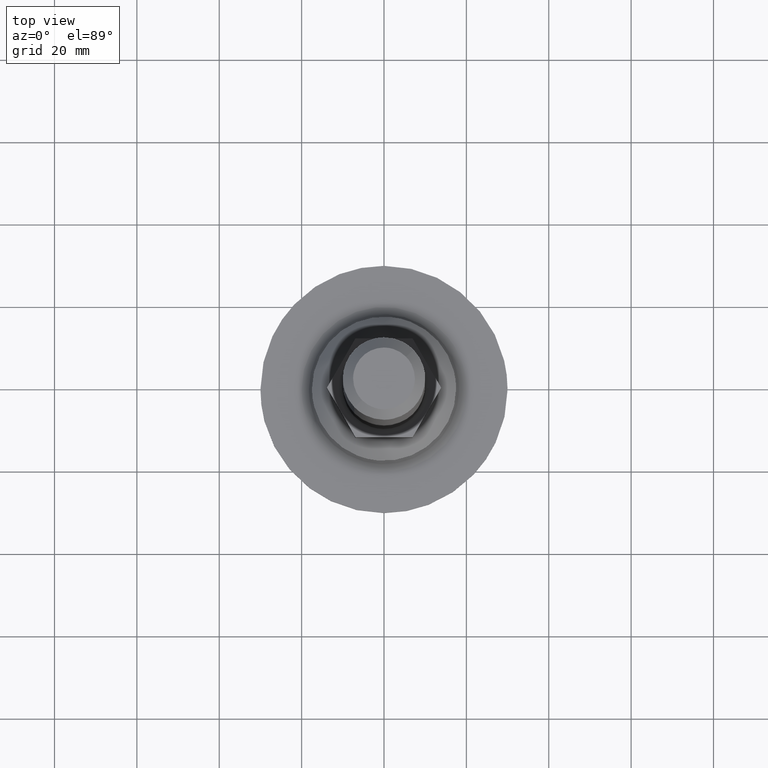
[diagram: clean part render]
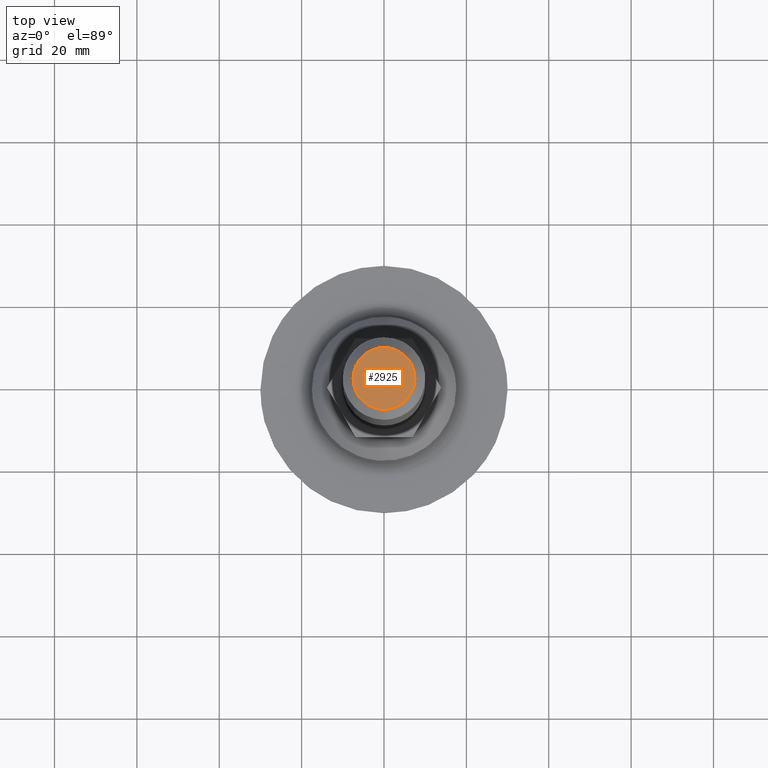
[diagram: same view with one face highlighted and labeled with its STEP entity id]
A machine part, top view. The second image highlights one B-rep face of the part: STEP entity #2925.
In plain terms, the highlighted face is a freeform B-spline surface patch.
Its self-contained STEP definition (entity closure, byte-faithful):
#2839=CARTESIAN_POINT('',(-8.249249970927089,8.249249970926865,156.0));
#2840=CARTESIAN_POINT('',(8.249250373258443,8.249249970926865,156.0));
#2841=CARTESIAN_POINT('',(-8.249249970927089,-8.249250373258215,156.0));
#2842=CARTESIAN_POINT('',(8.249250373258443,-8.249250373258215,156.0));
#2843=B_SPLINE_SURFACE_WITH_KNOTS('',1,1,((#2839,#2841),(#2840,#2842)),.UNSPECIFIED.,.F.,.F.,.U.,(2,2),(2,2),(0.0,16.498500344185530),(0.0,16.498500344185079),.UNSPECIFIED.);
#2844=CARTESIAN_POINT('',(-7.500000000000000,0.0,156.0));
#2845=VERTEX_POINT('',#2844);
#2846=CARTESIAN_POINT('',(-5.349377900920906,-5.256819022606571,156.000000218593410));
#2847=VERTEX_POINT('',#2846);
#2848=CARTESIAN_POINT('',(-7.500000000000000,0.0,156.0));
#2849=CARTESIAN_POINT('',(-7.500106200073280,-0.546106464111549,156.000000022708600));
#2850=CARTESIAN_POINT('',(-7.390142226541801,-1.547229718290013,156.000000064338710));
#2851=CARTESIAN_POINT('',(-6.963391268277682,-2.882041885373877,156.000000119842810));
#2852=CARTESIAN_POINT('',(-6.317720570643135,-4.124185055931876,156.000000171497390));
#2853=CARTESIAN_POINT('',(-5.732219579950963,-4.867380685235695,156.000000202396310));
#2854=CARTESIAN_POINT('',(-5.349377900920906,-5.256819022606571,156.000000218593410));
#2855=B_SPLINE_CURVE_WITH_KNOTS('',3,(#2848,#2849,#2850,#2851,#2852,#2853,#2854),.UNSPECIFIED.,.F.,.U.,(4,1,1,1,4),(0.000000043828694,1.638303553395550,3.003526415067799,4.186768356268257,5.825071865800560),.UNSPECIFIED.);
#2856=EDGE_CURVE('',#2845,#2847,#2855,.T.);
#2857=ORIENTED_EDGE('',*,*,#2856,.T.);
#2858=CARTESIAN_POINT('',(0.000001749013158,-7.499999999999796,156.0));
#2859=VERTEX_POINT('',#2858);
#2860=CARTESIAN_POINT('',(-5.349377900920906,-5.256819022606571,156.000000218593410));
#2861=CARTESIAN_POINT('',(-4.936360041716210,-5.677312572994516,156.000000201716600));
#2862=CARTESIAN_POINT('',(-4.180985432884779,-6.283169667683238,156.000000170848300));
#2863=CARTESIAN_POINT('',(-2.914373085367433,-6.948899307031571,156.000000119091510));
#2864=CARTESIAN_POINT('',(-1.581998411104013,-7.385144111041656,156.000000064646000));
#2865=CARTESIAN_POINT('',(-0.558377028348503,-7.500110485579886,156.000000022816690));
#2866=CARTESIAN_POINT('',(0.000001749013158,-7.499999999999796,156.0));
#2867=B_SPLINE_CURVE_WITH_KNOTS('',3,(#2860,#2861,#2862,#2863,#2864,#2865,#2866),.UNSPECIFIED.,.F.,.U.,(4,1,1,1,4),(0.000000048970378,1.768186686149679,2.884953871063571,4.280855391529840,5.955975767049213),.UNSPECIFIED.);
#2868=EDGE_CURVE('',#2847,#2859,#2867,.T.);
#2869=ORIENTED_EDGE('',*,*,#2868,.T.);
#2870=CARTESIAN_POINT('',(7.500000000000000,0.0,156.0));
#2871=VERTEX_POINT('',#2870);
#2872=CARTESIAN_POINT('',(0.000001749013158,-7.499999999999796,156.0));
#2873=CARTESIAN_POINT('',(0.674981685653475,-7.500240112328339,156.000000000000710));
#2874=CARTESIAN_POINT('',(1.687253191681694,-7.362344405829639,155.999999999999490));
#2875=CARTESIAN_POINT('',(3.138050012602648,-6.853275494631770,156.000000000000200));
#2876=CARTESIAN_POINT('',(4.403898013216294,-6.146498603649919,156.000000000000310));
#2877=CARTESIAN_POINT('',(5.508538513411512,-5.157563005795889,155.999999999999490));
#2878=CARTESIAN_POINT('',(6.346680767271556,-4.055797334140673,155.999999999999890));
#2879=CARTESIAN_POINT('',(7.000025773385493,-2.833756435497882,156.000000000000200));
#2880=CARTESIAN_POINT('',(7.412898018557483,-1.441951724538158,156.0));
#2881=CARTESIAN_POINT('',(7.500012303349404,-0.429500119654456,156.000000000000110));
#2882=CARTESIAN_POINT('',(7.500000000000000,0.0,156.0));
#2883=B_SPLINE_CURVE_WITH_KNOTS('',3,(#2872,#2873,#2874,#2875,#2876,#2877,#2878,#2879,#2880,#2881,#2882),.UNSPECIFIED.,.F.,.U.,(4,1,1,1,1,1,1,1,4),(0.000000177321665,2.024847265101659,3.037302921258737,4.602002465822457,6.350671561383708,7.455169592950589,8.743743033424885,10.492523747331029,11.781045385798789),.UNSPECIFIED.);
#2884=EDGE_CURVE('',#2859,#2871,#2883,.T.);
#2885=ORIENTED_EDGE('',*,*,#2884,.T.);
#2886=CARTESIAN_POINT('',(5.349377900920924,5.256819022606589,156.000000218593410));
#2887=VERTEX_POINT('',#2886);
#2888=CARTESIAN_POINT('',(7.500000000000000,0.0,156.0));
#2889=CARTESIAN_POINT('',(7.500088340864873,0.546101808763915,156.000000022708210));
#2890=CARTESIAN_POINT('',(7.390174948804482,1.547241537411428,156.000000064339390));
#2891=CARTESIAN_POINT('',(6.963375967437222,2.882034633912279,156.000000119842410));
#2892=CARTESIAN_POINT('',(6.317723818043145,4.124189502988250,156.000000171497190));
#2893=CARTESIAN_POINT('',(5.732220249316512,4.867377968787142,156.000000202398700));
#2894=CARTESIAN_POINT('',(5.349377900920924,5.256819022606589,156.000000218593410));
#2895=B_SPLINE_CURVE_WITH_KNOTS('',3,(#2888,#2889,#2890,#2891,#2892,#2893,#2894),.UNSPECIFIED.,.F.,.U.,(4,1,1,1,4),(0.000000043828417,1.638303553395381,3.003526415067709,4.186768356268222,5.825071865800570),.UNSPECIFIED.);
#2896=EDGE_CURVE('',#2871,#2887,#2895,.T.);
#2897=ORIENTED_EDGE('',*,*,#2896,.T.);
#2898=CARTESIAN_POINT('',(-0.000001749013101,7.499999999999797,156.0));
#2899=VERTEX_POINT('',#2898);
#2900=CARTESIAN_POINT('',(5.349377900920924,5.256819022606589,156.000000218593410));
#2901=CARTESIAN_POINT('',(4.827756130537935,5.788083442424723,156.000000197278210));
#2902=CARTESIAN_POINT('',(3.699770046819489,6.636465755660144,156.000000151184710));
#2903=CARTESIAN_POINT('',(1.830193364697843,7.353103608303607,156.000000074788690));
#2904=CARTESIAN_POINT('',(0.589392223691038,7.500102762901888,156.000000024084190));
#2905=CARTESIAN_POINT('',(-0.000001749013101,7.499999999999797,156.0));
#2906=B_SPLINE_CURVE_WITH_KNOTS('',3,(#2900,#2901,#2902,#2903,#2904,#2905),.UNSPECIFIED.,.F.,.U.,(4,1,1,4),(0.000000048971017,2.233503535995036,4.187789129821025,5.955975767049162),.UNSPECIFIED.);
#2907=EDGE_CURVE('',#2887,#2899,#2906,.T.);
#2908=ORIENTED_EDGE('',*,*,#2907,.T.);
#2909=CARTESIAN_POINT('',(-0.000001749013101,7.499999999999797,156.0));
#2910=CARTESIAN_POINT('',(-0.521555274751676,7.500085324977472,156.000000000000110));
#2911=CARTESIAN_POINT('',(-1.411227215469757,7.406794418672777,156.000000000000200));
#2912=CARTESIAN_POINT('',(-2.770342941889331,7.012694087596339,156.000000000000200));
#2913=CARTESIAN_POINT('',(-4.097004798517215,6.355210230776471,155.999999999999600));
#2914=CARTESIAN_POINT('',(-5.272801778922517,5.402181720271550,155.999999999999890));
#2915=CARTESIAN_POINT('',(-6.236659745323453,4.242280105497200,156.000000000000510));
#2916=CARTESIAN_POINT('',(-6.853277996313214,3.138051273614774,155.999999999998210));
#2917=CARTESIAN_POINT('',(-7.362359484885971,1.687253856707254,156.000000000001110));
#2918=CARTESIAN_POINT('',(-7.500222807712754,0.674976734487026,155.999999999999600));
#2919=CARTESIAN_POINT('',(-7.500000000000000,0.0,156.0));
#2920=B_SPLINE_CURVE_WITH_KNOTS('',3,(#2909,#2910,#2911,#2912,#2913,#2914,#2915,#2916,#2917,#2918,#2919),.UNSPECIFIED.,.F.,.U.,(4,1,1,1,1,1,1,1,4),(0.000000177321184,1.564652891949612,2.669143287153629,4.233820505983279,5.982508788203781,7.179044414418828,8.743743033424899,9.756199078521428,11.781045385798810),.UNSPECIFIED.);
#2921=EDGE_CURVE('',#2899,#2845,#2920,.T.);
#2922=ORIENTED_EDGE('',*,*,#2921,.T.);
#2923=EDGE_LOOP('',(#2857,#2869,#2885,#2897,#2908,#2922));
#2924=FACE_OUTER_BOUND('',#2923,.T.);
#2925=ADVANCED_FACE('',(#2924),#2843,.F.);